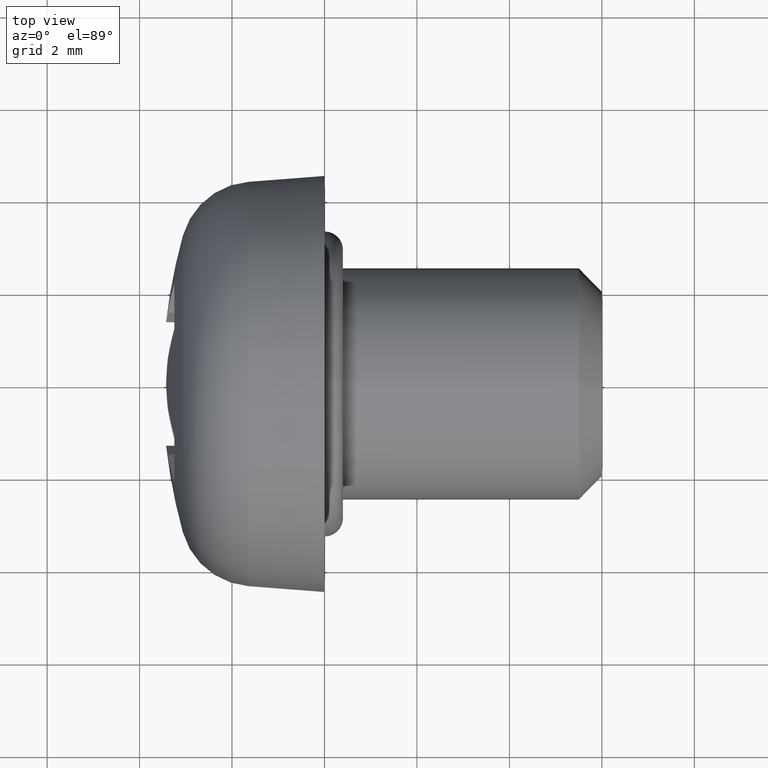
[diagram: clean part render]
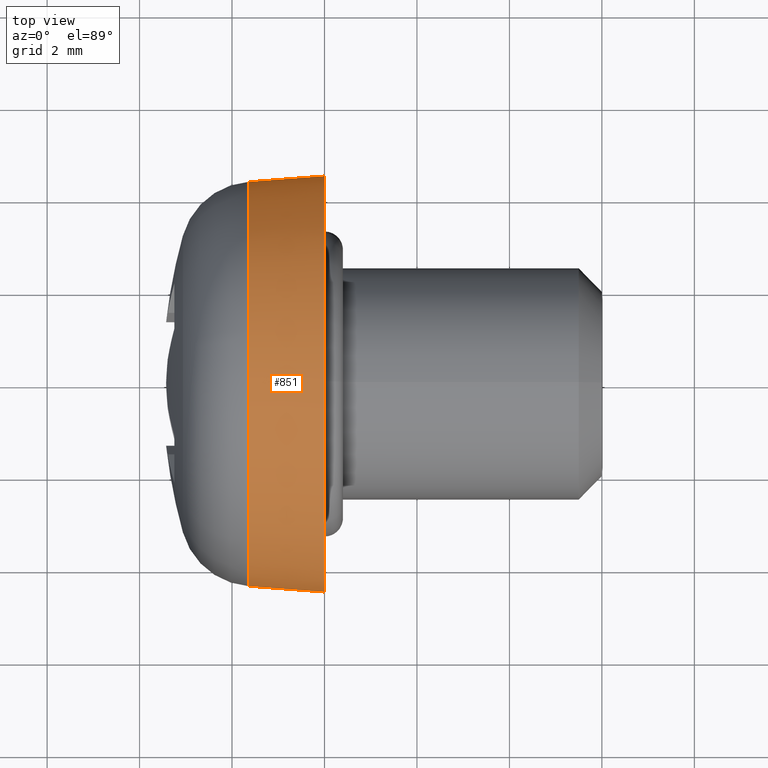
[diagram: same view with one face highlighted and labeled with its STEP entity id]
A machine part, top view. The second image highlights one B-rep face of the part: STEP entity #851.
In plain terms, the highlighted conical surface has half-angle 4.398 deg.
Its self-contained STEP definition (entity closure, byte-faithful):
#34 = CARTESIAN_POINT ( 'NONE',  ( 2.230358754842037700E-015, -4.499999999994828100, 5.510910596156756000E-016 ) ) ;
#36 = DIRECTION ( 'NONE',  ( 1.000000000000000000, 2.478176394271778600E-016, -0.0000000000000000000 ) ) ;
#50 = VECTOR ( 'NONE', #129, 1000.000000000000000 ) ;
#58 = VERTEX_POINT ( 'NONE', #498 ) ;
#81 = CARTESIAN_POINT ( 'NONE',  ( 0.0000000000000000000, 4.499999999994828100, 0.0000000000000000000 ) ) ;
#119 = ORIENTED_EDGE ( 'NONE', *, *, #373, .F. ) ;
#129 = DIRECTION ( 'NONE',  ( 0.9970559406991360600, -0.07667757896908947200, 9.390295165086414000E-018 ) ) ;
#150 = DIRECTION ( 'NONE',  ( -2.478176394271779100E-016, 1.000000000000000000, 0.0000000000000000000 ) ) ;
#177 = EDGE_CURVE ( 'NONE', #58, #1232, #798, .T. ) ;
#205 = EDGE_CURVE ( 'NONE', #270, #1032, #260, .T. ) ;
#222 = ORIENTED_EDGE ( 'NONE', *, *, #1220, .T. ) ;
#244 = LINE ( 'NONE', #81, #986 ) ;
#260 = CIRCLE ( 'NONE', #409, 4.373513440437846200 ) ;
#269 = AXIS2_PLACEMENT_3D ( 'NONE', #725, #926, #150 ) ;
#270 = VERTEX_POINT ( 'NONE', #932 ) ;
#353 = FACE_OUTER_BOUND ( 'NONE', #547, .T. ) ;
#373 = EDGE_CURVE ( 'NONE', #270, #58, #244, .T. ) ;
#409 = AXIS2_PLACEMENT_3D ( 'NONE', #1034, #937, #824 ) ;
#498 = CARTESIAN_POINT ( 'NONE',  ( 0.0000000000000000000, 4.499999999994828100, 0.0000000000000000000 ) ) ;
#547 = EDGE_LOOP ( 'NONE', ( #706, #222, #1044, #119 ) ) ;
#559 = LINE ( 'NONE', #1096, #50 ) ;
#576 = CONICAL_SURFACE ( 'NONE', #1020, 4.499999999994828100, 0.07675291547445781100 ) ;
#604 = CARTESIAN_POINT ( 'NONE',  ( 1.115179377421018900E-015, 2.763611208503467700E-031, 0.0000000000000000000 ) ) ;
#706 = ORIENTED_EDGE ( 'NONE', *, *, #205, .T. ) ;
#725 = CARTESIAN_POINT ( 'NONE',  ( 1.115179377421018900E-015, 2.763611208503467700E-031, 0.0000000000000000000 ) ) ;
#768 = DIRECTION ( 'NONE',  ( 0.9970559406991359500, 0.07667757896908995700, 0.0000000000000000000 ) ) ;
#798 = CIRCLE ( 'NONE', #269, 4.499999999994828100 ) ;
#824 = DIRECTION ( 'NONE',  ( -2.479018727737033300E-016, 1.000000000000000000, 0.0000000000000000000 ) ) ;
#851 = ADVANCED_FACE ( 'NONE', ( #353 ), #576, .T. ) ;
#917 = CARTESIAN_POINT ( 'NONE',  ( -1.644733406041988500, -4.373513440437846200, 5.433459916008446800E-016 ) ) ;
#926 = DIRECTION ( 'NONE',  ( 1.000000000000000000, 2.478176394271778600E-016, -0.0000000000000000000 ) ) ;
#932 = CARTESIAN_POINT ( 'NONE',  ( -1.644733406041990700, 4.373513440437846200, 0.0000000000000000000 ) ) ;
#937 = DIRECTION ( 'NONE',  ( 1.000000000000000000, 2.478176394271778600E-016, -0.0000000000000000000 ) ) ;
#986 = VECTOR ( 'NONE', #768, 1000.000000000000100 ) ;
#1020 = AXIS2_PLACEMENT_3D ( 'NONE', #604, #36, #1115 ) ;
#1032 = VERTEX_POINT ( 'NONE', #917 ) ;
#1034 = CARTESIAN_POINT ( 'NONE',  ( -1.644733406041989600, -4.075939501723478800E-016, 0.0000000000000000000 ) ) ;
#1044 = ORIENTED_EDGE ( 'NONE', *, *, #177, .F. ) ;
#1096 = CARTESIAN_POINT ( 'NONE',  ( 2.230358754842037700E-015, -4.499999999994828100, 5.510910596156756000E-016 ) ) ;
#1115 = DIRECTION ( 'NONE',  ( -2.478176394271779100E-016, 1.000000000000000000, 0.0000000000000000000 ) ) ;
#1220 = EDGE_CURVE ( 'NONE', #1032, #1232, #559, .T. ) ;
#1232 = VERTEX_POINT ( 'NONE', #34 ) ;